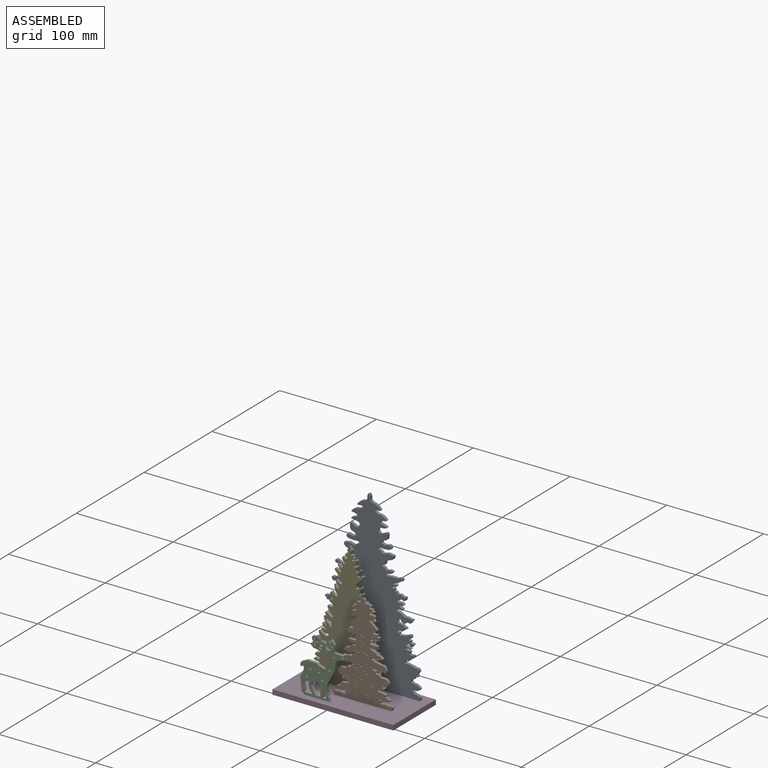
[diagram: assembled view]
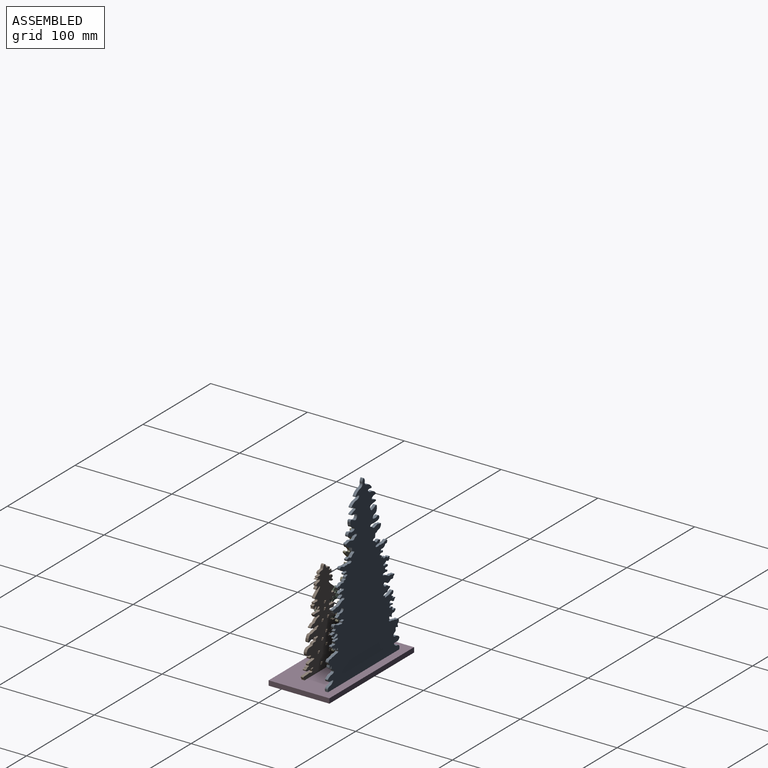
[diagram: assembled view, second angle]
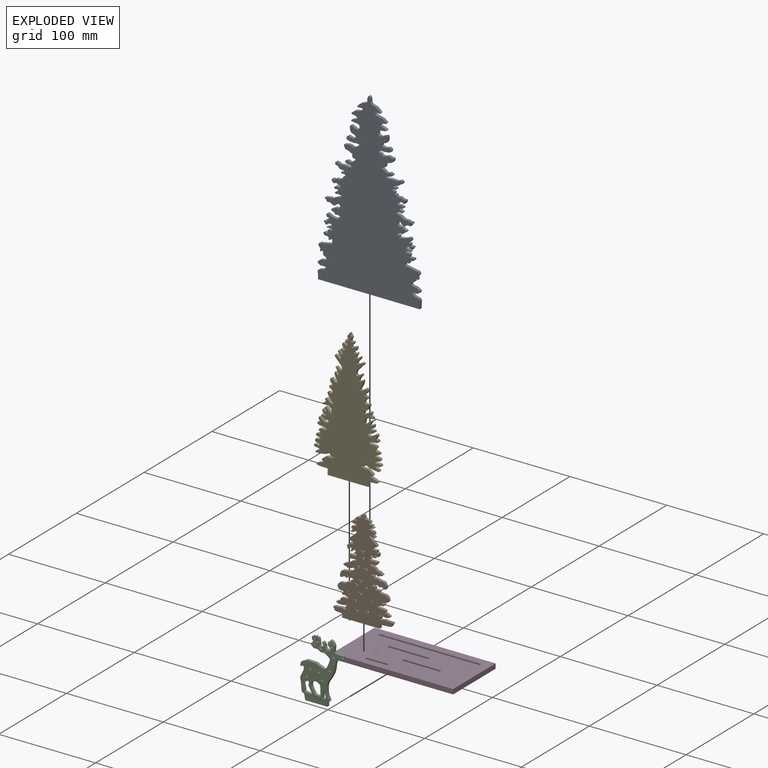
[diagram: exploded view]
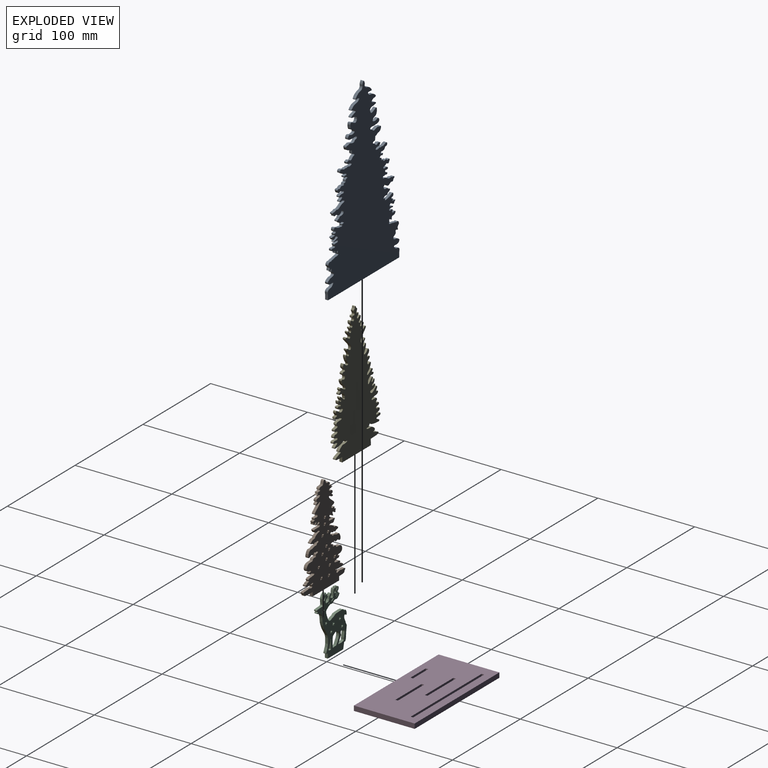
[diagram: exploded view, second angle]
ASSEMBLY  parts=5 mates=4
PART A: 7 faces, bbox 106.3x3x185 mm
  f0: extruded ~179.98x52.55mm, area 1524.3mm2, adj f1,f2,f3,f6
  f1: extruded ~179.98x52.55mm, area 1524.3mm2, adj f0,f2,f3,f4
  f2: plane 184.98x106.32mm, normal (0,-1,0), area 10404.7mm2, adj f0,f1,f4,f5,f6
  f3: plane 184.98x106.32mm, normal (0,1,0), area 10404.7mm2, adj f0,f1,f4,f5,f6
  f4: plane 5x3mm, normal (-1,0,0), area 15mm2, adj f1,f2,f3,f5
  f5: plane 105.11x3mm, normal (0,0,-1), area 315.3mm2, adj f2,f3,f4,f6
  f6: plane 5x3mm, normal (1,0,0), area 15mm2, adj f0,f2,f3,f5
PART B: 140 faces, bbox 61.9x3x102.2 mm
  f0: extruded ~4.29x3mm, area 12.9mm2, adj f120,f135,f136,f139
  f1: plane 3x1.17mm, normal (0.88,0,-0.48), area 4mm2, adj f2,f134,f135,f136
  f2: plane 3x1.17mm, normal (-0.88,0,-0.48), area 4mm2, adj f1,f3,f135,f136
  f3: plane 3x1.31mm, normal (-0.19,0,-0.98), area 4mm2, adj f2,f4,f135,f136
  f4: plane 3x0.97mm, normal (-0.73,0,0.68), area 4mm2, adj f3,f5,f135,f136
  f5: plane 3x1.32mm, normal (-0.99,0,-0.12), area 4mm2, adj f4,f6,f135,f136
  f6: plane 3x1.21mm, normal (0.43,0,0.91), area 4mm2, adj f5,f7,f135,f136
  f7: plane 3x1.21mm, normal (-0.43,0,0.91), area 4mm2, adj f6,f8,f135,f136
  f8: plane 3x1.32mm, normal (0.99,0,-0.12), area 4mm2, adj f7,f9,f135,f136
  f9: plane 3x0.97mm, normal (0.73,0,0.68), area 4mm2, adj f8,f134,f135,f136
  f10: plane 3x1.17mm, normal (0.88,0,-0.48), area 4mm2, adj f11,f121,f135,f136
  f11: plane 3x1.17mm, normal (-0.88,0,-0.48), area 4mm2, adj f10,f12,f135,f136
  f12: plane 3x1.31mm, normal (-0.19,0,-0.98), area 4mm2, adj f11,f13,f135,f136
  f13: plane 3x0.97mm, normal (-0.73,0,0.68), area 4mm2, adj f12,f14,f135,f136
  f14: plane 3x1.32mm, normal (-0.99,0,-0.12), area 4mm2, adj f13,f15,f135,f136
  f15: plane 3x1.21mm, normal (0.43,0,0.91), area 4mm2, adj f14,f16,f135,f136
  f16: plane 3x1.21mm, normal (-0.43,0,0.91), area 4mm2, adj f15,f17,f135,f136
  f17: plane 3x1.32mm, normal (0.99,0,-0.12), area 4mm2, adj f16,f18,f135,f136
  f18: plane 3x0.97mm, normal (0.73,0,0.68), area 4mm2, adj f17,f121,f135,f136
  f19: plane 3x1.17mm, normal (0.88,0,-0.48), area 4mm2, adj f20,f122,f135,f136
  f20: plane 3x1.17mm, normal (-0.88,0,-0.48), area 4mm2, adj f19,f21,f135,f136
  f21: plane 3x1.31mm, normal (-0.19,0,-0.98), area 4mm2, adj f20,f22,f135,f136
  f22: plane 3x0.97mm, normal (-0.73,0,0.68), area 4mm2, adj f21,f23,f135,f136
  f23: plane 3x1.32mm, normal (-0.99,0,-0.12), area 4mm2, adj f22,f24,f135,f136
  f24: plane 3x1.21mm, normal (0.43,0,0.91), area 4mm2, adj f23,f25,f135,f136
  f25: plane 3x1.21mm, normal (-0.43,0,0.91), area 4mm2, adj f24,f26,f135,f136
  f26: plane 3x1.32mm, normal (0.99,0,-0.12), area 4mm2, adj f25,f27,f135,f136
  f27: plane 3x0.97mm, normal (0.73,0,0.68), area 4mm2, adj f26,f122,f135,f136
  f28: plane 3x1.32mm, normal (-0.99,0,-0.12), area 4mm2, adj f29,f123,f135,f136
  f29: plane 3x1.21mm, normal (0.43,0,0.91), area 4mm2, adj f28,f30,f135,f136
  f30: plane 3x1.21mm, normal (-0.43,0,0.91), area 4mm2, adj f29,f31,f135,f136
  f31: plane 3x1.32mm, normal (0.99,0,-0.12), area 4mm2, adj f30,f32,f135,f136
  f32: plane 3x0.97mm, normal (0.73,0,0.68), area 4mm2, adj f31,f33,f135,f136
  f33: plane 3x1.31mm, normal (0.19,0,-0.98), area 4mm2, adj f32,f34,f135,f136
  f34: plane 3x1.17mm, normal (0.88,0,-0.48), area 4mm2, adj f33,f35,f135,f136
  f35: plane 3x1.17mm, normal (-0.88,0,-0.48), area 4mm2, adj f34,f36,f135,f136
  f36: plane 3x1.31mm, normal (-0.19,0,-0.98), area 4mm2, adj f35,f123,f135,f136
  f37: plane 3x0.97mm, normal (0.73,0,0.68), area 4mm2, adj f38,f124,f135,f136
  f38: plane 3x1.31mm, normal (0.19,0,-0.98), area 4mm2, adj f37,f39,f135,f136
  f39: plane 3x1.17mm, normal (0.88,0,-0.48), area 4mm2, adj f38,f40,f135,f136
  f40: plane 3x1.17mm, normal (-0.88,0,-0.48), area 4mm2, adj f39,f41,f135,f136
  f41: plane 3x1.31mm, normal (-0.19,0,-0.98), area 4mm2, adj f40,f42,f135,f136
  f42: plane 3x0.97mm, normal (-0.73,0,0.68), area 4mm2, adj f41,f43,f135,f136
  f43: plane 3x1.32mm, normal (-0.99,0,-0.12), area 4mm2, adj f42,f44,f135,f136
  f44: plane 3x1.21mm, normal (0.43,0,0.91), area 4mm2, adj f43,f45,f135,f136
  f45: plane 3x1.21mm, normal (-0.43,0,0.91), area 4mm2, adj f44,f124,f135,f136
  f46: plane 3x0.97mm, normal (0.73,0,0.68), area 4mm2, adj f47,f125,f135,f136
  f47: plane 3x1.31mm, normal (0.19,0,-0.98), area 4mm2, adj f46,f48,f135,f136
  f48: plane 3x1.17mm, normal (0.88,0,-0.48), area 4mm2, adj f47,f49,f135,f136
  f49: plane 3x1.17mm, normal (-0.88,0,-0.48), area 4mm2, adj f48,f50,f135,f136
  f50: plane 3x1.31mm, normal (-0.19,0,-0.98), area 4mm2, adj f49,f51,f135,f136
  f51: plane 3x0.97mm, normal (-0.73,0,0.68), area 4mm2, adj f50,f52,f135,f136
  f52: plane 3x1.32mm, normal (-0.99,0,-0.12), area 4mm2, adj f51,f53,f135,f136
  f53: plane 3x1.21mm, normal (0.43,0,0.91), area 4mm2, adj f52,f54,f135,f136
  f54: plane 3x1.21mm, normal (-0.43,0,0.91), area 4mm2, adj f53,f125,f135,f136
  f55: plane 3x0.97mm, normal (0.73,0,0.68), area 4mm2, adj f56,f126,f135,f136
  f56: plane 3x1.31mm, normal (0.19,0,-0.98), area 4mm2, adj f55,f57,f135,f136
  f57: plane 3x1.17mm, normal (0.88,0,-0.48), area 4mm2, adj f56,f58,f135,f136
  f58: plane 3x1.17mm, normal (-0.88,0,-0.48), area 4mm2, adj f57,f59,f135,f136
  f59: plane 3x1.31mm, normal (-0.19,0,-0.98), area 4mm2, adj f58,f60,f135,f136
  f60: plane 3x0.97mm, normal (-0.73,0,0.68), area 4mm2, adj f59,f61,f135,f136
  f61: plane 3x1.32mm, normal (-0.99,0,-0.12), area 4mm2, adj f60,f62,f135,f136
  f62: plane 3x1.21mm, normal (0.43,0,0.91), area 4mm2, adj f61,f63,f135,f136
  f63: plane 3x1.21mm, normal (-0.43,0,0.91), area 4mm2, adj f62,f126,f135,f136
  f64: plane 3x0.97mm, normal (0.73,0,0.68), area 4mm2, adj f65,f127,f135,f136
  f65: plane 3x1.31mm, normal (0.19,0,-0.98), area 4mm2, adj f64,f66,f135,f136
  f66: plane 3x1.17mm, normal (0.88,0,-0.48), area 4mm2, adj f65,f67,f135,f136
  f67: plane 3x1.17mm, normal (-0.88,0,-0.48), area 4mm2, adj f66,f68,f135,f136
  f68: plane 3x1.31mm, normal (-0.19,0,-0.98), area 4mm2, adj f67,f69,f135,f136
  f69: plane 3x0.97mm, normal (-0.73,0,0.68), area 4mm2, adj f68,f70,f135,f136
  f70: plane 3x1.32mm, normal (-0.99,0,-0.12), area 4mm2, adj f69,f71,f135,f136
  f71: plane 3x1.21mm, normal (0.43,0,0.91), area 4mm2, adj f70,f72,f135,f136
  f72: plane 3x1.21mm, normal (-0.43,0,0.91), area 4mm2, adj f71,f127,f135,f136
  f73: plane 3x0.97mm, normal (0.73,0,0.68), area 4mm2, adj f74,f128,f135,f136
  f74: plane 3x1.31mm, normal (0.19,0,-0.98), area 4mm2, adj f73,f75,f135,f136
  f75: plane 3x1.17mm, normal (0.88,0,-0.48), area 4mm2, adj f74,f76,f135,f136
  f76: plane 3x1.17mm, normal (-0.88,0,-0.48), area 4mm2, adj f75,f77,f135,f136
  f77: plane 3x1.31mm, normal (-0.19,0,-0.98), area 4mm2, adj f76,f78,f135,f136
  f78: plane 3x0.97mm, normal (-0.73,0,0.68), area 4mm2, adj f77,f79,f135,f136
  f79: plane 3x1.32mm, normal (-0.99,0,-0.12), area 4mm2, adj f78,f80,f135,f136
  f80: plane 3x1.21mm, normal (0.43,0,0.91), area 4mm2, adj f79,f81,f135,f136
  f81: plane 3x1.21mm, normal (-0.43,0,0.91), area 4mm2, adj f80,f128,f135,f136
  f82: plane 3x0.97mm, normal (0.73,0,0.68), area 4mm2, adj f83,f129,f135,f136
  f83: plane 3x1.31mm, normal (0.19,0,-0.98), area 4mm2, adj f82,f84,f135,f136
  f84: plane 3x1.17mm, normal (0.88,0,-0.48), area 4mm2, adj f83,f85,f135,f136
  f85: plane 3x1.17mm, normal (-0.88,0,-0.48), area 4mm2, adj f84,f86,f135,f136
  f86: plane 3x1.31mm, normal (-0.19,0,-0.98), area 4mm2, adj f85,f87,f135,f136
  f87: plane 3x0.97mm, normal (-0.73,0,0.68), area 4mm2, adj f86,f88,f135,f136
  f88: plane 3x1.32mm, normal (-0.99,0,-0.12), area 4mm2, adj f87,f89,f135,f136
  f89: plane 3x1.21mm, normal (0.43,0,0.91), area 4mm2, adj f88,f90,f135,f136
  f90: plane 3x1.21mm, normal (-0.43,0,0.91), area 4mm2, adj f89,f129,f135,f136
  f91: plane 3x0.97mm, normal (0.73,0,0.68), area 4mm2, adj f92,f130,f135,f136
  f92: plane 3x1.31mm, normal (0.19,0,-0.98), area 4mm2, adj f91,f93,f135,f136
  f93: plane 3x1.17mm, normal (0.88,0,-0.48), area 4mm2, adj f92,f94,f135,f136
  f94: plane 3x1.17mm, normal (-0.88,0,-0.48), area 4mm2, adj f93,f95,f135,f136
  f95: plane 3x1.31mm, normal (-0.19,0,-0.98), area 4mm2, adj f94,f96,f135,f136
  f96: plane 3x0.97mm, normal (-0.73,0,0.68), area 4mm2, adj f95,f97,f135,f136
  f97: plane 3x1.32mm, normal (-0.99,0,-0.12), area 4mm2, adj f96,f98,f135,f136
  f98: plane 3x1.21mm, normal (0.43,0,0.91), area 4mm2, adj f97,f99,f135,f136
  f99: plane 3x1.21mm, normal (-0.43,0,0.91), area 4mm2, adj f98,f130,f135,f136
  f100: plane 3x1.17mm, normal (-0.88,0,-0.48), area 4mm2, adj f101,f131,f135,f136
  f101: plane 3x1.31mm, normal (-0.19,0,-0.98), area 4mm2, adj f100,f102,f135,f136
  f102: plane 3x0.97mm, normal (-0.73,0,0.68), area 4mm2, adj f101,f103,f135,f136
  f103: plane 3x1.32mm, normal (-0.99,0,-0.12), area 4mm2, adj f102,f104,f135,f136
  f104: plane 3x1.21mm, normal (0.43,0,0.91), area 4mm2, adj f103,f105,f135,f136
  f105: plane 3x1.21mm, normal (-0.43,0,0.91), area 4mm2, adj f104,f106,f135,f136
  f106: plane 3x1.32mm, normal (0.99,0,-0.12), area 4mm2, adj f105,f107,f135,f136
  f107: plane 3x0.97mm, normal (0.73,0,0.68), area 4mm2, adj f106,f108,f135,f136
  f108: plane 3x1.31mm, normal (0.19,0,-0.98), area 4mm2, adj f107,f131,f135,f136
  f109: plane 3x1.31mm, normal (-0.19,0,-0.98), area 4mm2, adj f110,f132,f135,f136
  f110: plane 3x0.97mm, normal (-0.73,0,0.68), area 4mm2, adj f109,f111,f135,f136
  f111: plane 3x1.32mm, normal (-0.99,0,-0.12), area 4mm2, adj f110,f112,f135,f136
  f112: plane 3x1.21mm, normal (0.43,0,0.91), area 4mm2, adj f111,f113,f135,f136
  f113: plane 3x1.21mm, normal (-0.43,0,0.91), area 4mm2, adj f112,f114,f135,f136
  f114: plane 3x1.32mm, normal (0.99,0,-0.12), area 4mm2, adj f113,f115,f135,f136
  f115: plane 3x0.97mm, normal (0.73,0,0.68), area 4mm2, adj f114,f116,f135,f136
  f116: plane 3x1.31mm, normal (0.19,0,-0.98), area 4mm2, adj f115,f117,f135,f136
  f117: plane 3x1.17mm, normal (0.88,0,-0.48), area 4mm2, adj f116,f118,f135,f136
  f118: plane 3x0.34mm, normal (-0.59,0,-0.81), area 1.3mm2, adj f117,f119,f135,f136
  f119: plane 3x0.37mm, normal (-1,0,0), area 1.1mm2, adj f118,f132,f135,f136
  f120: extruded ~97.96x30.96mm, area 823.2mm2, adj f0,f133,f135,f136
  f121: plane 3x1.31mm, normal (0.19,0,-0.98), area 4mm2, adj f10,f18,f135,f136
  f122: plane 3x1.31mm, normal (0.19,0,-0.98), area 4mm2, adj f19,f27,f135,f136
  f123: plane 3x0.97mm, normal (-0.73,0,0.68), area 4mm2, adj f28,f36,f135,f136
  f124: plane 3x1.32mm, normal (0.99,0,-0.12), area 4mm2, adj f37,f45,f135,f136
  f125: plane 3x1.32mm, normal (0.99,0,-0.12), area 4mm2, adj f46,f54,f135,f136
  f126: plane 3x1.32mm, normal (0.99,0,-0.12), area 4mm2, adj f55,f63,f135,f136
  f127: plane 3x1.32mm, normal (0.99,0,-0.12), area 4mm2, adj f64,f72,f135,f136
  f128: plane 3x1.32mm, normal (0.99,0,-0.12), area 4mm2, adj f73,f81,f135,f136
  f129: plane 3x1.32mm, normal (0.99,0,-0.12), area 4mm2, adj f82,f90,f135,f136
  f130: plane 3x1.32mm, normal (0.99,0,-0.12), area 4mm2, adj f91,f99,f135,f136
  f131: plane 3x1.17mm, normal (0.88,0,-0.48), area 4mm2, adj f100,f108,f135,f136
  f132: plane 3x0.55mm, normal (-0.88,0,-0.48), area 1.9mm2, adj f109,f119,f135,f136
  f133: extruded ~98.08x30.4mm, area 825.6mm2, adj f120,f135,f136,f137
  f134: plane 3x1.31mm, normal (0.19,0,-0.98), area 4mm2, adj f1,f9,f135,f136
  f135: plane 102.16x61.9mm, normal (0,-1,0), area 3119.1mm2, adj f0,f1,f2,f3,f4,f5,f6,f7
  f136: plane 102.16x61.9mm, normal (0,1,0), area 3119.1mm2, adj f0,f1,f2,f3,f4,f5,f6,f7
  f137: plane 4.01x3mm, normal (-1,0,0), area 12mm2, adj f133,f135,f136,f138
  f138: plane 39.06x3mm, normal (0,0,-1), area 117.2mm2, adj f135,f136,f137,f139
  f139: plane 4.07x3mm, normal (1,0,0), area 12.2mm2, adj f0,f135,f136,f138
PART C: 71 faces, bbox 44.5x3x63 mm
  f0: plane 3x1.16mm, normal (0.48,0,-0.88), area 4mm2, adj f1,f59,f66,f67
  f1: plane 3x1.31mm, normal (0.99,0,0.13), area 4mm2, adj f0,f2,f66,f67
  f2: plane 3x0.97mm, normal (-0.68,0,-0.73), area 4mm2, adj f1,f3,f66,f67
  f3: plane 3x1.19mm, normal (0.43,0,-0.9), area 4mm2, adj f2,f4,f66,f67
  f4: plane 3x1.2mm, normal (-0.91,0,0.42), area 4mm2, adj f3,f5,f66,f67
  f5: plane 3x0.96mm, normal (-0.72,0,-0.69), area 4mm2, adj f4,f6,f66,f67
  f6: plane 3x1.32mm, normal (0.12,0,0.99), area 4mm2, adj f5,f7,f66,f67
  f7: plane 3x1.17mm, normal (-0.88,0,0.47), area 4mm2, adj f6,f8,f66,f67
  f8: plane 3x1.3mm, normal (0.98,0,0.19), area 4mm2, adj f7,f59,f66,f67
  f9: plane 3x1.16mm, normal (0.48,0,-0.88), area 4mm2, adj f10,f60,f66,f67
  f10: plane 3x1.31mm, normal (0.99,0,0.13), area 4mm2, adj f9,f11,f66,f67
  f11: plane 3x0.97mm, normal (-0.68,0,-0.73), area 4mm2, adj f10,f12,f66,f67
  f12: plane 3x1.19mm, normal (0.43,0,-0.9), area 4mm2, adj f11,f13,f66,f67
  f13: plane 3x1.2mm, normal (-0.91,0,0.42), area 4mm2, adj f12,f14,f66,f67
  f14: plane 3x0.96mm, normal (-0.72,0,-0.69), area 4mm2, adj f13,f15,f66,f67
  f15: plane 3x1.32mm, normal (0.12,0,0.99), area 4mm2, adj f14,f16,f66,f67
  f16: plane 3x1.17mm, normal (-0.88,0,0.47), area 4mm2, adj f15,f17,f66,f67
  f17: plane 3x1.3mm, normal (0.98,0,0.19), area 4mm2, adj f16,f60,f66,f67
  f18: plane 3x1.16mm, normal (0.48,0,-0.88), area 4mm2, adj f19,f61,f66,f67
  f19: plane 3x1.31mm, normal (0.99,0,0.13), area 4mm2, adj f18,f20,f66,f67
  f20: plane 3x0.97mm, normal (-0.68,0,-0.73), area 4mm2, adj f19,f21,f66,f67
  f21: plane 3x1.19mm, normal (0.43,0,-0.9), area 4mm2, adj f20,f22,f66,f67
  f22: plane 3x1.2mm, normal (-0.91,0,0.42), area 4mm2, adj f21,f23,f66,f67
  f23: plane 3x0.96mm, normal (-0.72,0,-0.69), area 4mm2, adj f22,f24,f66,f67
  f24: plane 3x1.32mm, normal (0.12,0,0.99), area 4mm2, adj f23,f25,f66,f67
  f25: plane 3x1.17mm, normal (-0.88,0,0.47), area 4mm2, adj f24,f26,f66,f67
  f26: plane 3x1.3mm, normal (0.98,0,0.19), area 4mm2, adj f25,f61,f66,f67
  f27: plane 3x1.16mm, normal (0.48,0,-0.88), area 4mm2, adj f28,f62,f66,f67
  f28: plane 3x1.31mm, normal (0.99,0,0.13), area 4mm2, adj f27,f29,f66,f67
  f29: plane 3x0.97mm, normal (-0.68,0,-0.73), area 4mm2, adj f28,f30,f66,f67
  f30: plane 3x1.19mm, normal (0.43,0,-0.9), area 4mm2, adj f29,f31,f66,f67
  f31: plane 3x1.2mm, normal (-0.91,0,0.42), area 4mm2, adj f30,f32,f66,f67
  f32: plane 3x0.96mm, normal (-0.72,0,-0.69), area 4mm2, adj f31,f33,f66,f67
  f33: plane 3x1.32mm, normal (0.12,0,0.99), area 4mm2, adj f32,f34,f66,f67
  f34: plane 3x1.17mm, normal (-0.88,0,0.47), area 4mm2, adj f33,f35,f66,f67
  f35: plane 3x1.3mm, normal (0.98,0,0.19), area 4mm2, adj f34,f62,f66,f67
  f36: plane 3x1.16mm, normal (0.48,0,-0.88), area 4mm2, adj f37,f63,f66,f67
  f37: plane 3x1.31mm, normal (0.99,0,0.13), area 4mm2, adj f36,f38,f66,f67
  f38: plane 3x0.97mm, normal (-0.68,0,-0.73), area 4mm2, adj f37,f39,f66,f67
  f39: plane 3x1.19mm, normal (0.43,0,-0.9), area 4mm2, adj f38,f40,f66,f67
  f40: plane 3x1.2mm, normal (-0.91,0,0.42), area 4mm2, adj f39,f41,f66,f67
  f41: plane 3x0.96mm, normal (-0.72,0,-0.69), area 4mm2, adj f40,f42,f66,f67
  f42: plane 3x1.32mm, normal (0.12,0,0.99), area 4mm2, adj f41,f43,f66,f67
  f43: plane 3x1.17mm, normal (-0.88,0,0.47), area 4mm2, adj f42,f44,f66,f67
  f44: plane 3x1.3mm, normal (0.98,0,0.19), area 4mm2, adj f43,f63,f66,f67
  f45: plane 3x1.16mm, normal (0.48,0,-0.88), area 4mm2, adj f46,f64,f66,f67
  f46: plane 3x1.31mm, normal (0.99,0,0.13), area 4mm2, adj f45,f47,f66,f67
  f47: plane 3x0.97mm, normal (-0.68,0,-0.73), area 4mm2, adj f46,f48,f66,f67
  f48: plane 3x1.19mm, normal (0.43,0,-0.9), area 4mm2, adj f47,f49,f66,f67
  f49: plane 3x1.2mm, normal (-0.91,0,0.42), area 4mm2, adj f48,f50,f66,f67
  f50: plane 3x0.96mm, normal (-0.72,0,-0.69), area 4mm2, adj f49,f51,f66,f67
  f51: plane 3x1.32mm, normal (0.12,0,0.99), area 4mm2, adj f50,f52,f66,f67
  f52: plane 3x1.17mm, normal (-0.88,0,0.47), area 4mm2, adj f51,f53,f66,f67
  f53: plane 3x1.3mm, normal (0.98,0,0.19), area 4mm2, adj f52,f64,f66,f67
  f54: extruded ~3x2.17mm, area 16.8mm2, adj f66,f67
  f55: extruded ~11.33x9.37mm, area 103.4mm2, adj f66,f67
  f56: extruded ~9.92x3.65mm, area 70.4mm2, adj f66,f67
  f57: extruded ~13.32x9.56mm, area 112.8mm2, adj f66,f67
  f58: extruded ~3.44x3mm, area 25.5mm2, adj f66,f67
  f59: plane 3x1.3mm, normal (0.18,0,0.98), area 4mm2, adj f0,f8,f66,f67
  f60: plane 3x1.3mm, normal (0.18,0,0.98), area 4mm2, adj f9,f17,f66,f67
  f61: plane 3x1.3mm, normal (0.18,0,0.98), area 4mm2, adj f18,f26,f66,f67
  f62: plane 3x1.3mm, normal (0.18,0,0.98), area 4mm2, adj f27,f35,f66,f67
  f63: plane 3x1.3mm, normal (0.18,0,0.98), area 4mm2, adj f36,f44,f66,f67
  f64: plane 3x1.3mm, normal (0.18,0,0.98), area 4mm2, adj f45,f53,f66,f67
  f65: extruded ~56.88x42.09mm, area 857.5mm2, adj f66,f67,f68,f69
  f66: plane 63.02x44.47mm, normal (0,1,0), area 1152mm2, adj f0,f1,f2,f3,f4,f5,f6,f7
  f67: plane 63.02x44.47mm, normal (0,-1,0), area 1152mm2, adj f0,f1,f2,f3,f4,f5,f6,f7
  f68: plane 5x3mm, normal (1,0,0), area 15mm2, adj f65,f66,f67,f70
  f69: plane 6.32x3mm, normal (-0.98,0,-0.21), area 19.4mm2, adj f65,f66,f67,f70
  f70: plane 22.73x3mm, normal (0,0,-1), area 68.2mm2, adj f66,f67,f68,f69
PART D: 22 faces, bbox 125x62.8x5 mm
  f0: plane 124.95x62.75mm, normal (0,0,1), area 7301.3mm2, adj f2,f3,f4,f5,f6,f7,f8,f9
  f1: plane 124.95x62.75mm, normal (0,0,-1), area 7301.3mm2, adj f2,f3,f4,f5,f6,f7,f8,f9
  f2: plane 124.95x5mm, normal (0,1,0), area 624.8mm2, adj f0,f1,f3,f5
  f3: plane 62.75x5mm, normal (-1,0,0), area 313.8mm2, adj f0,f1,f2,f4
  f4: plane 124.95x5mm, normal (0,-1,0), area 624.8mm2, adj f0,f1,f3,f5
  f5: plane 62.75x5mm, normal (1,0,0), area 313.8mm2, adj f0,f1,f2,f4
  f6: plane 38.66x5mm, normal (0,-1,0), area 193.3mm2, adj f0,f1,f7,f9
  f7: plane 5x2.6mm, normal (1,0,0), area 13mm2, adj f0,f1,f6,f8
  f8: plane 38.66x5mm, normal (0,1,0), area 193.3mm2, adj f0,f1,f7,f9
  f9: plane 5x2.6mm, normal (-1,0,0), area 13mm2, adj f0,f1,f6,f8
  f10: plane 5x2.6mm, normal (1,0,0), area 13mm2, adj f0,f1,f11,f13
  f11: plane 104.71x5mm, normal (0,1,0), area 523.5mm2, adj f0,f1,f10,f12
  f12: plane 5x2.6mm, normal (-1,0,0), area 13mm2, adj f0,f1,f11,f13
  f13: plane 104.71x5mm, normal (0,-1,0), area 523.5mm2, adj f0,f1,f10,f12
  f14: plane 41.83x5mm, normal (0,1,0), area 209.2mm2, adj f0,f1,f15,f17
  f15: plane 5x2.6mm, normal (-1,0,0), area 13mm2, adj f0,f1,f14,f16
  f16: plane 41.83x5mm, normal (0,-1,0), area 209.2mm2, adj f0,f1,f15,f17
  f17: plane 5x2.6mm, normal (1,0,0), area 13mm2, adj f0,f1,f14,f16
  f18: plane 22.33x5mm, normal (0,1,0), area 111.7mm2, adj f0,f1,f19,f21
  f19: plane 5x2.6mm, normal (-1,0,0), area 13mm2, adj f0,f1,f18,f20
  f20: plane 22.33x5mm, normal (0,-1,0), area 111.7mm2, adj f0,f1,f19,f21
  f21: plane 5x2.6mm, normal (1,0,0), area 13mm2, adj f0,f1,f18,f20
PART E: 8 faces, bbox 70x3x138.6 mm
  f0: plane 6.88x3mm, normal (-0.02,0,-1), area 20.6mm2, adj f2,f3,f4,f6
  f1: extruded ~133.61x30.74mm, area 1146.1mm2, adj f2,f3,f4,f5
  f2: extruded ~132.39x34.52mm, area 1131mm2, adj f0,f1,f3,f4
  f3: plane 138.61x70.04mm, normal (0,-1,0), area 5496.6mm2, adj f0,f1,f2,f5,f6,f7
  f4: plane 138.61x70.04mm, normal (0,1,0), area 5496.6mm2, adj f0,f1,f2,f5,f6,f7
  f5: plane 5x3mm, normal (1,0,0), area 15mm2, adj f1,f3,f4,f7
  f6: plane 6.08x3mm, normal (-1,0,0.02), area 18.3mm2, adj f0,f3,f4,f7
  f7: plane 42.23x3mm, normal (0,0,-1), area 126.7mm2, adj f3,f4,f5,f6
PLACE A t=(0,0,-2.41)mm
PLACE B t=(0,0,-4.51)mm
PLACE C t=(0,0,-1.38)mm
PLACE D at identity
PLACE E t=(0,0,-1.22)mm
MATE fastened A.f5 <-> D.f1  axis (0,0,-1) through (11.83,45,-2)mm
MATE fastened C.f70 <-> D.f1  axis (0,0,-1) through (-10.94,0,-2)mm
MATE fastened B.f138 <-> D.f1  axis (0,0,-1) through (24.68,15,-2)mm
MATE fastened E.f7 <-> D.f1  axis (0,0,-1) through (0.86,30,-2)mm
